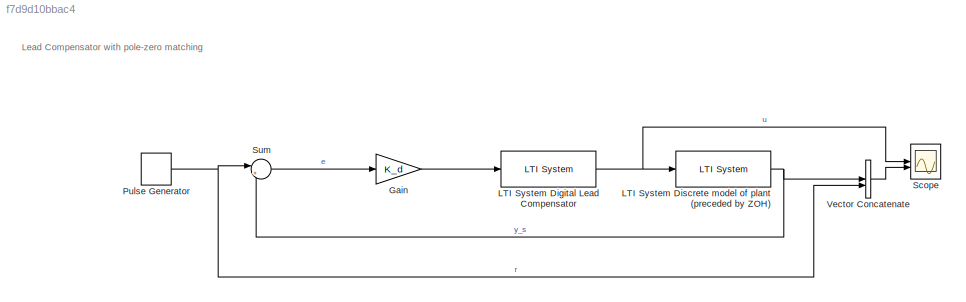
MODEL slx_f7d9d10bbac4
KIND model
CONFIG AbsTol = auto
CONFIG EnableMultiTasking = off
CONFIG FixedStep = T
CONFIG MaxStep = auto
CONFIG MinStep = auto
CONFIG RelTol = 1e-3
CONFIG SampleTimeConstraint = Unconstrained
CONFIG SolverName = FixedStepDiscrete
CONFIG StartTime = 0.0
CONFIG StopTime = 60
BLOCK [Gain] Gain
  Gain = K_d
BLOCK [Reference] LTI System Digital Lead Compensator  REF=cstblocks/LTI System
  SourceBlock = cstblocks/LTI System
  SourceType = LTI Block
BLOCK [Reference] LTI System Discrete model of plant (preceded by ZOH)  REF=cstblocks/LTI System
  SourceBlock = cstblocks/LTI System
  SourceType = LTI Block
BLOCK [DiscretePulseGenerator] Pulse Generator
  Period = 10
  PulseType = Time based
  PulseWidth = 50
BLOCK [Scope] Scope
  Floating = off
  NumInputPorts = 2
  ScopeSpecificationString = Simulink.scopes.TimeScopeBlockCfg('CurrentConfiguration', extmgr.ConfigurationSet(extmgr.Configuration('Core','General UI',true),extmgr.Configuration('Core','Source UI',true),extmgr.Configuration('Sources','WiredSimulink',true,'DataLogging',true,'DataLoggingSaveFormat','StructureWithTime'),extmgr.Configuration('Visuals','Time Domain',true,'SerializedDisplays',{struct('MinYLimReal','-2.49996','MaxY...<+2048ch>
BLOCK [Sum] Sum
  Inputs = |+-
BLOCK [Concatenate] Vector Concatenate
ANNOTATION (root): Lead Compensator with pole-zero matching
LINE Gain:1 -> LTI System Digital Lead Compensator:1
NET LTI System Digital Lead Compensator:1 -> LTI System Discrete model of plant (preceded by ZOH):1, Scope:1
NET LTI System Discrete model of plant (preceded by ZOH):1 -> Sum:2, Vector Concatenate:1
NET Pulse Generator:1 -> Sum:1, Vector Concatenate:2
LINE Sum:1 -> Gain:1
LINE Vector Concatenate:1 -> Scope:2
note: NET lines group one-source signal fan-out (src -> all destinations, sorted); 1:1 wires keep LINE
